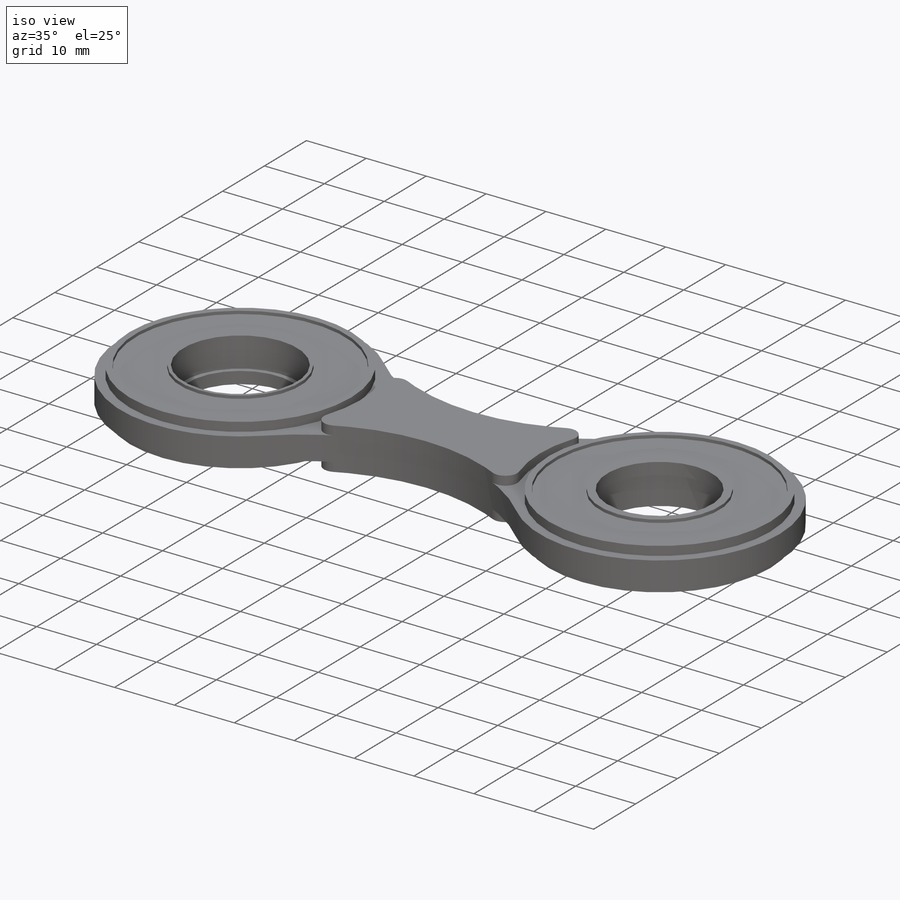
[diagram: iso view]
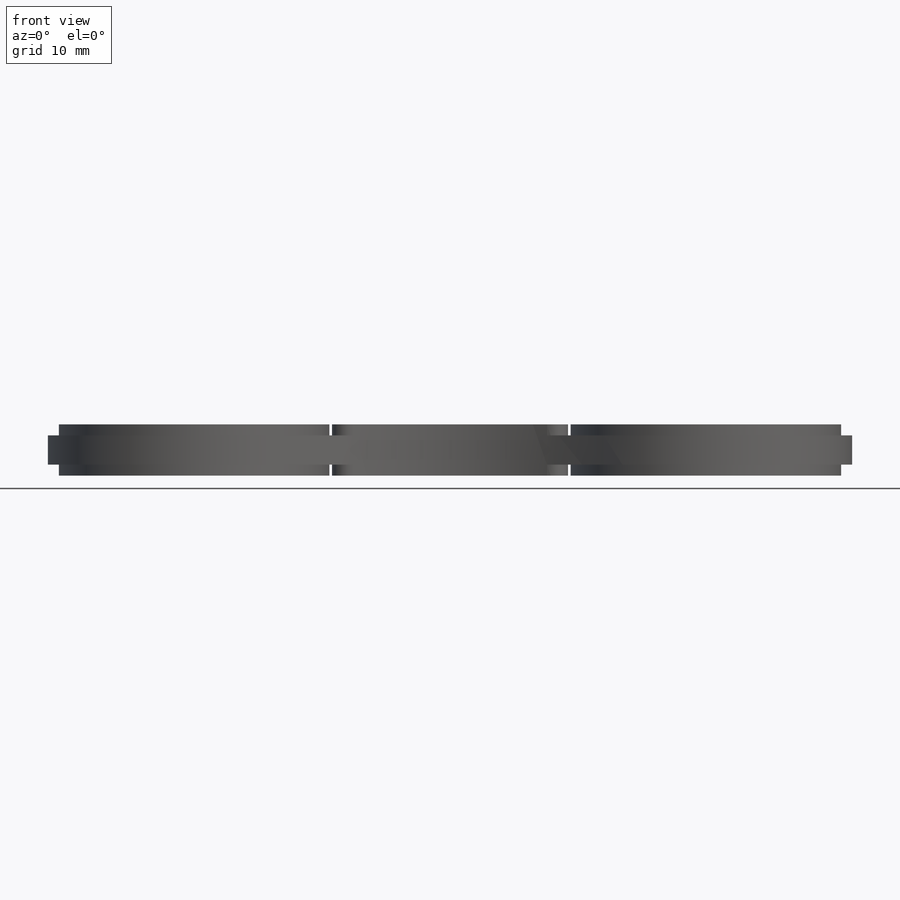
[diagram: front view]
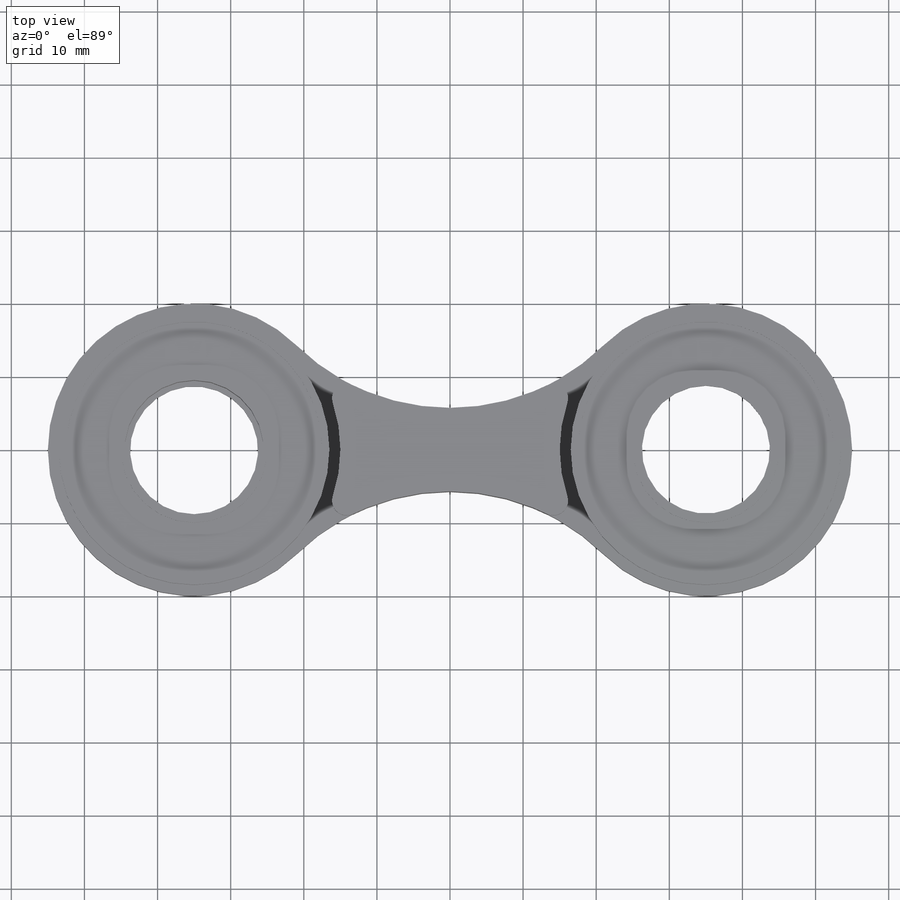
[diagram: top view]
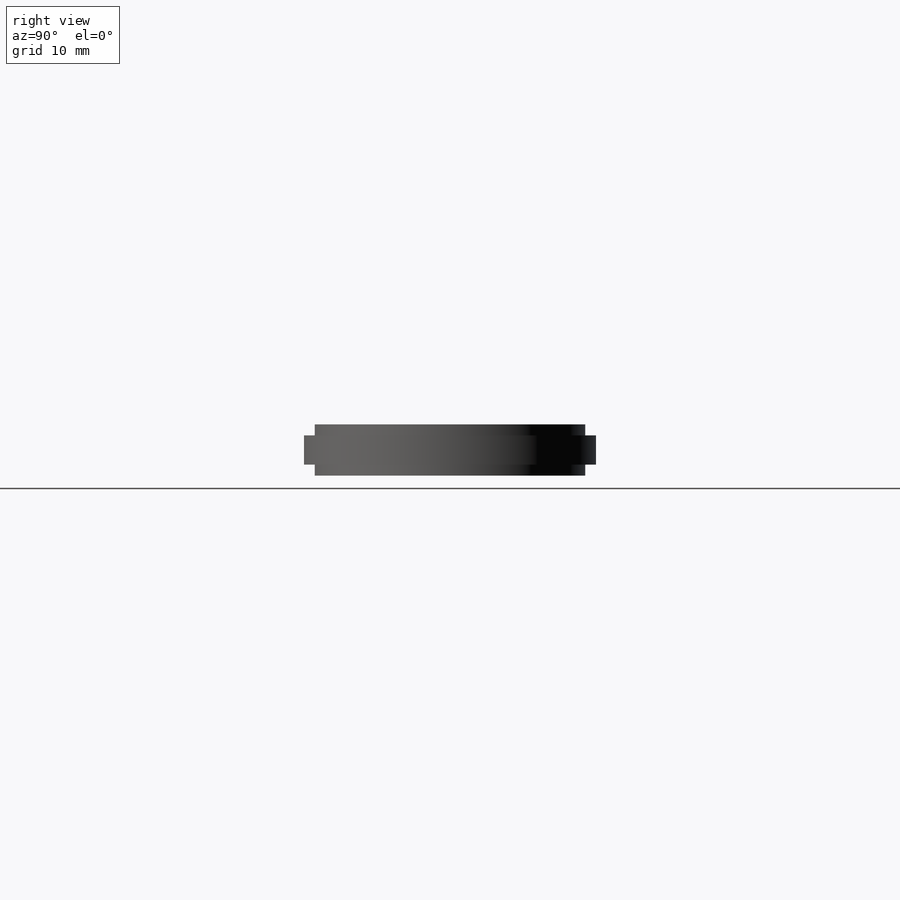
[diagram: right view]
SOLIDWORKS PART (.sldprt)
format: sldprt  version: not decoded by parser v0  size: 262,144 bytes
history: native  units: mm
features: sketch x7, cut_extrude x5, mirror x2, material x1, extrude x1, cut_revolve x1, fillet x1 (+16 scaffold rows collapsed)
feature tree (34):
  scaffold x16  (default folders/planes/origin — collapsed)
  material  "Plain Carbon Steel"
  sketch  "Sketch1"  dims[D2=40.0mm D3=30.0mm D1=70.0mm]
  extrude  "Boss-Extrude1"  Depth=7mm
  sketch  "Sketch2"  dims[D1=19.0mm]
  cut_extrude  "Cut-Extrude1"  Depth=5mm
  sketch  "Sketch3"  dims[D1=17.5mm]
  cut_extrude  "Cut-Extrude2"  [1 undecoded]
  sketch  "Sketch4"
  cut_extrude  "Cut-Extrude3"  Depth=5mm
  sketch  "Sketch5"
  cut_extrude  "Cut-Extrude4"  [1 undecoded]
  sketch  "Sketch6"  dims[D1=35.0mm D2=20.0mm]
  cut_extrude  "Cut-Extrude5"  Depth=0.5mm
  sketch  "Sketch7"  dims[D1=1.5mm D2=1.5mm]
  cut_revolve  "Cut-Revolve1"  Angle=360deg
  fillet  "Fillet1"  Radius=2mm
  mirror  "Mirror1"
  mirror  "Mirror2"
decode coverage: 11 of 17 modeling features carry decoded parameters
note: 2 parameter values undecoded
note: suppression state not decoded; provenance and decode notes live in map.json
